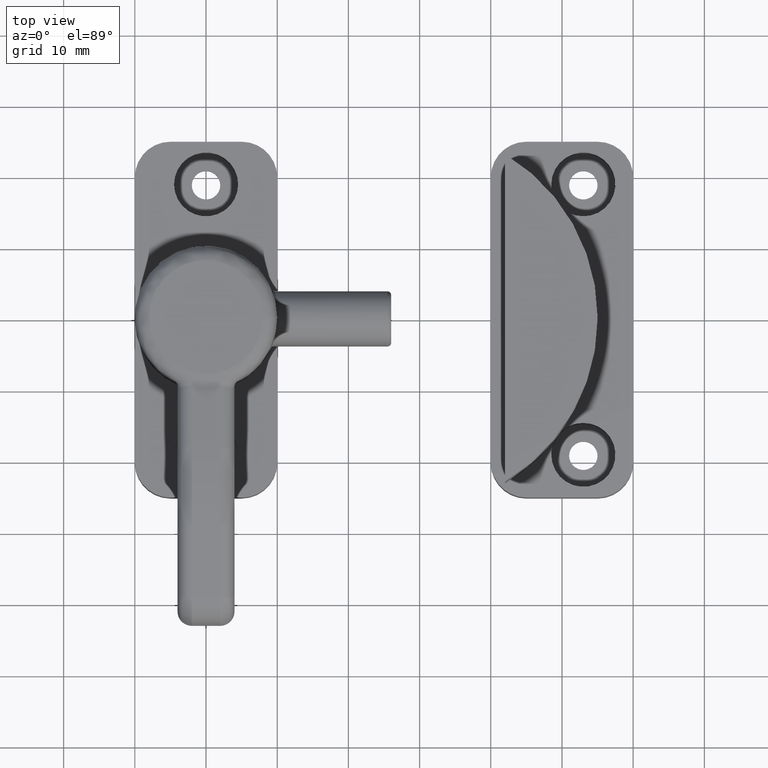
[diagram: clean part render]
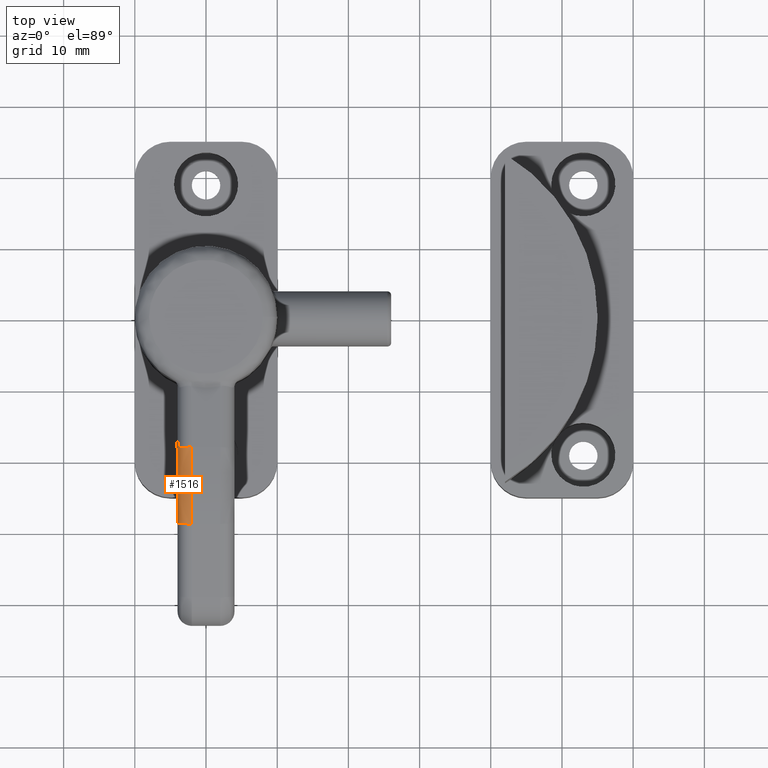
[diagram: same view with one face highlighted and labeled with its STEP entity id]
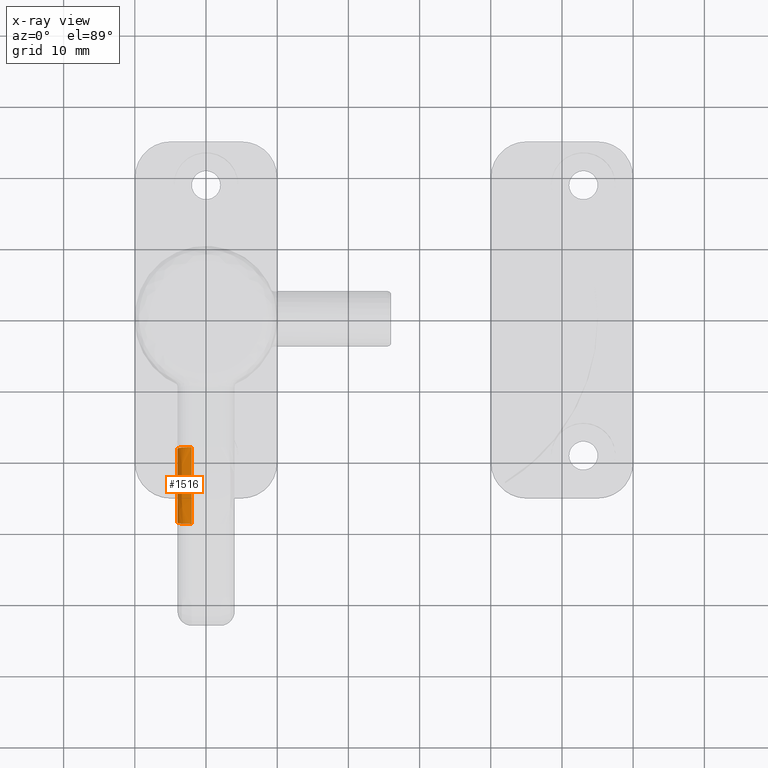
[diagram: x-ray of the same camera — body ghosted, the highlighted face saturated]
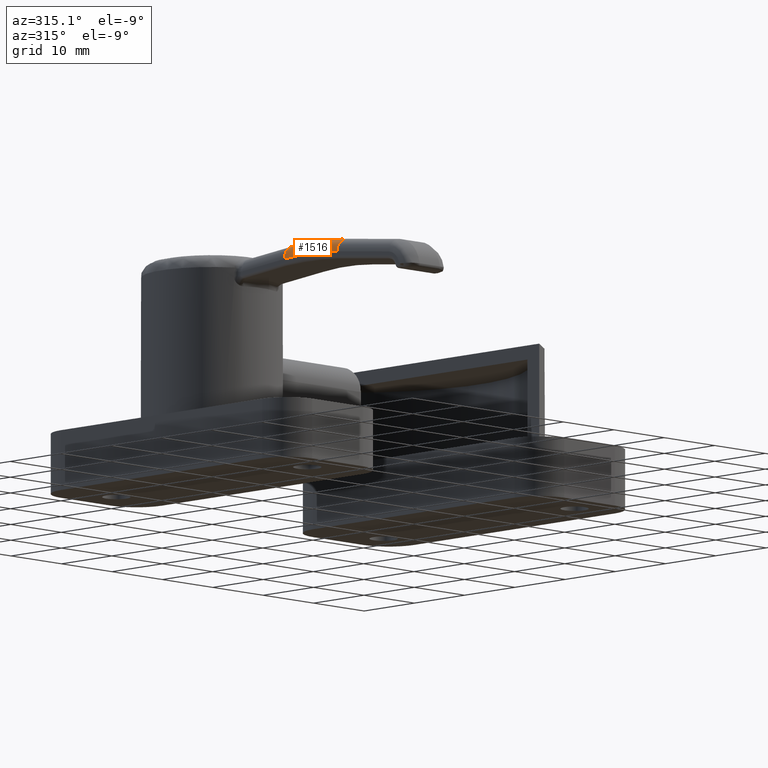
[diagram: same view with one face highlighted and labeled with its STEP entity id]
A machine part, top view. The second image highlights one B-rep face of the part: STEP entity #1516.
The next image is the same camera in x-ray: the body ghosted, the highlighted face saturated — about 0% of this face is hidden behind the body in this view.
A second angle (auxiliary view) of the same face is appended — the face is thin or edge-on in the first view.
In plain terms, the highlighted face is a freeform B-spline surface patch.
Its self-contained STEP definition (entity closure, byte-faithful):
#1347=CARTESIAN_POINT('',(7.999999999999911,-29.097492164159291,31.108320439283752));
#1348=VERTEX_POINT('',#1347);
#1364=CARTESIAN_POINT('',(7.999999999999912,-18.298025116656817,31.194366490767614));
#1365=VERTEX_POINT('',#1364);
#1372=CARTESIAN_POINT('',(7.999999999999912,-23.289700995617579,-20.063151708218605));
#1373=DIRECTION('',(-1.0,1.224647E-016,-1.540744E-033));
#1374=DIRECTION('',(-1.381067E-017,-0.112772644049354,0.993620818398104));
#1375=AXIS2_PLACEMENT_3D('',#1372,#1373,#1374);
#1376=CIRCLE('',#1375,51.500000000000000);
#1377=EDGE_CURVE('',#1348,#1365,#1376,.T.);
#1419=CARTESIAN_POINT('',(5.999999999999911,-28.871946876060605,29.121078802487546));
#1420=VERTEX_POINT('',#1419);
#1421=CARTESIAN_POINT('',(7.999999999999912,-28.871946876060612,29.121078802487549));
#1422=DIRECTION('',(-1.216835E-016,-0.993620818398104,-0.112772644049353));
#1423=DIRECTION('',(-6.905333E-018,-0.112772644049353,0.993620818398104));
#1424=AXIS2_PLACEMENT_3D('',#1421,#1422,#1423);
#1425=CIRCLE('',#1424,2.000000000000004);
#1426=EDGE_CURVE('',#1348,#1420,#1425,.T.);
#1446=CARTESIAN_POINT('',(7.999999999999911,-29.097492164159291,31.108320439283752));
#1447=CARTESIAN_POINT('',(7.739879570645055,-29.097492164159291,31.108320439283752));
#1448=CARTESIAN_POINT('',(7.213944365313363,-29.085755063407930,31.004906816658558));
#1449=CARTESIAN_POINT('',(6.549174177054010,-29.035560340169297,30.562649544036148));
#1450=CARTESIAN_POINT('',(6.104077552231455,-28.960592448354134,29.902120045531245));
#1451=CARTESIAN_POINT('',(5.999999999999911,-28.901281344650158,29.379539876385167));
#1452=CARTESIAN_POINT('',(5.999999999999911,-28.871946876060576,29.121078802487546));
#1453=CARTESIAN_POINT('',(7.999999999999911,-28.201705428074035,31.209989241770735));
#1454=CARTESIAN_POINT('',(7.739879570645055,-28.201705428074035,31.209989241770735));
#1455=CARTESIAN_POINT('',(7.213944365313363,-28.191778643649172,31.106370154289259));
#1456=CARTESIAN_POINT('',(6.549174177054010,-28.149325894251035,30.663234193495235));
#1457=CARTESIAN_POINT('',(6.104077552231455,-28.085920960051283,30.001392337922944));
#1458=CARTESIAN_POINT('',(5.999999999999911,-28.035757929764316,29.477773892999966));
#1459=CARTESIAN_POINT('',(5.999999999999911,-28.010947974386369,29.218799301965291));
#1460=CARTESIAN_POINT('',(7.999999999999911,-26.404437268984282,31.366302221400034));
#1461=CARTESIAN_POINT('',(7.739879570645055,-26.404437268984282,31.366302221400034));
#1462=CARTESIAN_POINT('',(7.213944365313363,-26.398142625738188,31.262367237368931));
#1463=CARTESIAN_POINT('',(6.549174177054010,-26.371223041223686,30.817880317746798));
#1464=CARTESIAN_POINT('',(6.104077552231413,-26.331017530178769,30.154020749380443));
#1465=CARTESIAN_POINT('',(5.999999999999911,-26.299208802771062,29.628805984087769));
#1466=CARTESIAN_POINT('',(5.999999999999911,-26.283476637008903,29.369041874618727));
#1467=CARTESIAN_POINT('',(7.999999999999926,-23.700209086473194,31.458894027495397));
#1468=CARTESIAN_POINT('',(7.739879570645056,-23.700209086473194,31.458894027495393));
#1469=CARTESIAN_POINT('',(7.213944365313364,-23.699379481089352,31.354771922521891));
#1470=CARTESIAN_POINT('',(6.549174177054025,-23.695831602143699,30.909484764057424));
#1471=CARTESIAN_POINT('',(6.104077552231471,-23.690532698438147,30.244430005936351));
#1472=CARTESIAN_POINT('',(5.999999999999926,-23.686340452670009,29.718269662186383));
#1473=CARTESIAN_POINT('',(5.999999999999926,-23.684267024692389,29.458037882419131));
#1474=CARTESIAN_POINT('',(7.999999999999884,-20.994848848024219,31.409403767219722));
#1475=CARTESIAN_POINT('',(7.739879570645056,-20.994848848024219,31.409403767219729));
#1476=CARTESIAN_POINT('',(7.213944365313336,-20.999486568300995,31.305381678268546));
#1477=CARTESIAN_POINT('',(6.549174177054010,-21.019320178890609,30.860522246946033));
#1478=CARTESIAN_POINT('',(6.104077552231414,-21.048942495282489,30.196106316973278));
#1479=CARTESIAN_POINT('',(5.999999999999912,-21.072378292087336,29.670451384295173));
#1480=CARTESIAN_POINT('',(5.999999999999912,-21.083969319775463,29.410469573998814));
#1481=CARTESIAN_POINT('',(7.999999999999912,-19.195318139514427,31.281748714799001));
#1482=CARTESIAN_POINT('',(7.739879570645056,-19.195318139514427,31.281748714798987));
#1483=CARTESIAN_POINT('',(7.213944365313364,-19.203592573408855,31.177984606923228));
#1484=CARTESIAN_POINT('',(6.549174177054010,-19.238978903311335,30.734228453910927));
#1485=CARTESIAN_POINT('',(6.104077552231456,-19.291829848205793,30.071460315651446));
#1486=CARTESIAN_POINT('',(5.999999999999912,-19.333643053800529,29.547109039016132));
#1487=CARTESIAN_POINT('',(5.999999999999912,-19.354323298974748,29.287771999342052));
#1488=CARTESIAN_POINT('',(7.999999999999912,-18.298025116656817,31.194366490767607));
#1489=CARTESIAN_POINT('',(7.739879570645056,-18.298025116656817,31.194366490767607));
#1490=CARTESIAN_POINT('',(7.213944365313364,-18.308112910967907,31.090778975668286));
#1491=CARTESIAN_POINT('',(6.549174177054010,-18.351254233024747,30.647778036888688));
#1492=CARTESIAN_POINT('',(6.104077552231456,-18.415687578923638,29.986137842270317));
#1493=CARTESIAN_POINT('',(5.999999999999912,-18.466664240639119,29.462678942099874));
#1494=CARTESIAN_POINT('',(5.999999999999912,-18.491876607101943,29.203783259739019));
#1495=B_SPLINE_SURFACE_WITH_KNOTS('',3,3,((#1446,#1453,#1460,#1467,#1474,#1481,#1488),(#1447,#1454,#1461,#1468,#1475,#1482,#1489),(#1448,#1455,#1462,#1469,#1476,#1483,#1490),(#1449,#1456,#1463,#1470,#1477,#1484,#1491),(#1450,#1457,#1464,#1471,#1478,#1485,#1492),(#1451,#1458,#1465,#1472,#1479,#1486,#1493),(#1452,#1459,#1466,#1473,#1480,#1487,#1494)),.UNSPECIFIED.,.F.,.F.,.U.,(4,1,1,1,4),(4,1,1,1,4),(0.0,0.780361288064516,1.560722576129023,2.341083864193537,3.121445152258048),(0.0,2.662887172337848,5.325774344675670,7.988661517013517,10.651548689351344),.UNSPECIFIED.);
#1496=ORIENTED_EDGE('',*,*,#1377,.T.);
#1497=CARTESIAN_POINT('',(5.999999999999912,-18.491876607102000,29.203783259739016));
#1498=VERTEX_POINT('',#1497);
#1499=CARTESIAN_POINT('',(7.999999999999912,-18.491876607102000,29.203783259739019));
#1500=DIRECTION('',(1.218881E-016,0.995291615514295,-0.096925745222539));
#1501=DIRECTION('',(5.934990E-018,0.096925745222539,0.995291615514295));
#1502=AXIS2_PLACEMENT_3D('',#1499,#1500,#1501);
#1503=CIRCLE('',#1502,2.000000000000004);
#1504=EDGE_CURVE('',#1498,#1365,#1503,.T.);
#1505=ORIENTED_EDGE('',*,*,#1504,.F.);
#1506=CARTESIAN_POINT('',(5.999999999999912,-23.289700995617583,-20.063151708218598));
#1507=DIRECTION('',(-1.0,1.224647E-016,-1.540744E-033));
#1508=DIRECTION('',(-1.381067E-017,-0.112772644049354,0.993620818398104));
#1509=AXIS2_PLACEMENT_3D('',#1506,#1507,#1508);
#1510=CIRCLE('',#1509,49.500000000000000);
#1511=EDGE_CURVE('',#1420,#1498,#1510,.T.);
#1512=ORIENTED_EDGE('',*,*,#1511,.F.);
#1513=ORIENTED_EDGE('',*,*,#1426,.F.);
#1514=EDGE_LOOP('',(#1496,#1505,#1512,#1513));
#1515=FACE_OUTER_BOUND('',#1514,.T.);
#1516=ADVANCED_FACE('',(#1515),#1495,.F.);